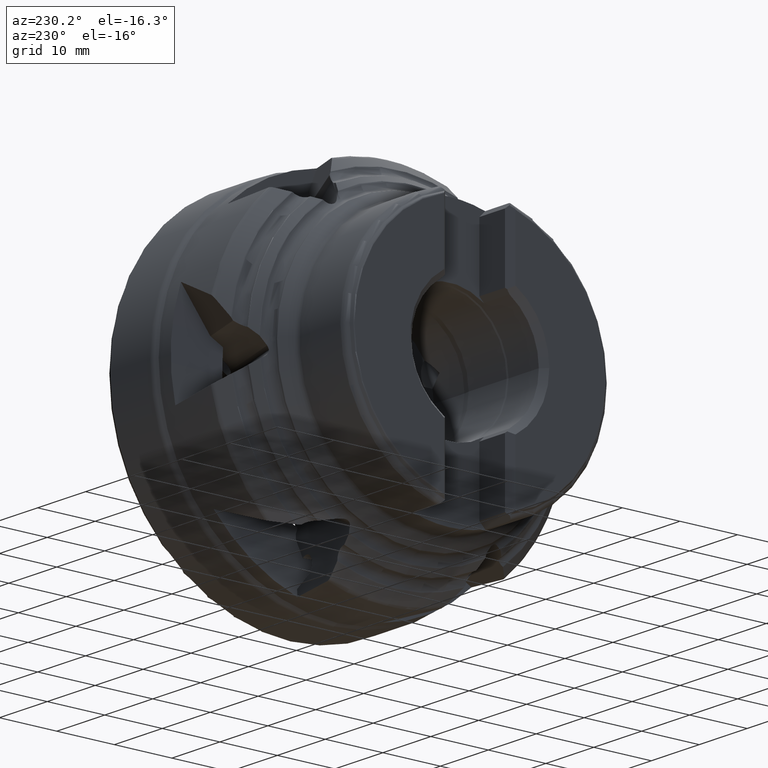
[diagram: clean part render]
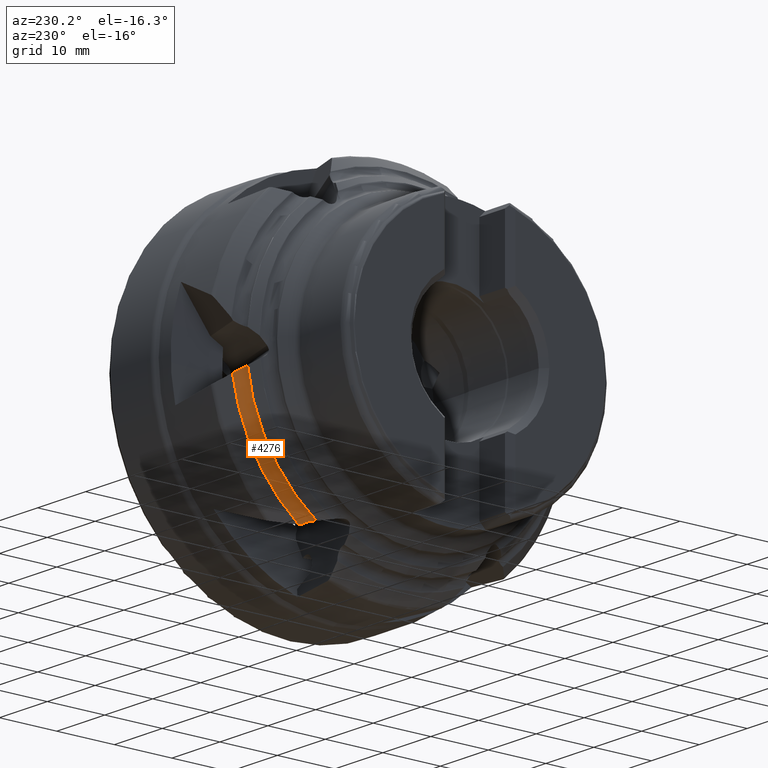
[diagram: same view with one face highlighted and labeled with its STEP entity id]
A machine part, auxiliary view. The second image highlights one B-rep face of the part: STEP entity #4276.
In plain terms, the highlighted toroidal blend (fillet) surface has major radius 29.0539 mm and minor (blend) radius 1.5 mm.
Its self-contained STEP definition (entity closure, byte-faithful):
#1833 = EDGE_LOOP ( 'NONE', ( #2826, #2835, #2807, #2806, #2836 ) ) ;
#2806 = ORIENTED_EDGE ( 'NONE', *, *, #7948, .F. ) ;
#2807 = ORIENTED_EDGE ( 'NONE', *, *, #7975, .F. ) ;
#2826 = ORIENTED_EDGE ( 'NONE', *, *, #7989, .F. ) ;
#2835 = ORIENTED_EDGE ( 'NONE', *, *, #7949, .T. ) ;
#2836 = ORIENTED_EDGE ( 'NONE', *, *, #7984, .F. ) ;
#3239 = VERTEX_POINT ( 'NONE', #11591 ) ;
#3378 = VERTEX_POINT ( 'NONE', #11730 ) ;
#3981 = VERTEX_POINT ( 'NONE', #5359 ) ;
#3987 = VERTEX_POINT ( 'NONE', #5363 ) ;
#4009 = VERTEX_POINT ( 'NONE', #5377 ) ;
#4276 = ADVANCED_FACE ( 'NONE', ( #6176 ), #6181, .F. ) ;
#5359 = CARTESIAN_POINT ( 'NONE',  ( -21.08210839350755400, 28.70235254961209400, -4.483227594041697900 ) ) ;
#5363 = CARTESIAN_POINT ( 'NONE',  ( -21.11050798975558300, 16.76531685484063100, -23.37208403636481100 ) ) ;
#5377 = CARTESIAN_POINT ( 'NONE',  ( -21.08210839350755400, 17.18136177224721100, -23.42488376050909700 ) ) ;
#6176 = FACE_OUTER_BOUND ( 'NONE', #1833, .T. ) ;
#6181 = TOROIDAL_SURFACE ( 'NONE', #7502, 29.05387160771681500, 1.500000000000000000 ) ;
#7225 = CIRCLE ( 'NONE', #9475, 29.05037644407040200 ) ;
#7227 = CIRCLE ( 'NONE', #9474, 27.55387160771681500 ) ;
#7502 = AXIS2_PLACEMENT_3D ( 'NONE', #8207, #8206, #8209 ) ;
#7948 = EDGE_CURVE ( 'NONE', #4009, #3981, #7225, .T. ) ;
#7949 = EDGE_CURVE ( 'NONE', #3378, #3239, #7227, .T. ) ;
#7975 = EDGE_CURVE ( 'NONE', #3981, #3239, #12252, .T. ) ;
#7984 = EDGE_CURVE ( 'NONE', #3987, #4009, #12255, .T. ) ;
#7989 = EDGE_CURVE ( 'NONE', #3378, #3987, #12257, .T. ) ;
#8206 = DIRECTION ( 'NONE',  ( 1.000000000000000000, -0.0000000000000000000, -0.0000000000000000000 ) ) ;
#8207 = CARTESIAN_POINT ( 'NONE',  ( -22.58210432144572300, 0.0000000000000000000, 0.0000000000000000000 ) ) ;
#8209 = DIRECTION ( 'NONE',  ( 0.0000000000000000000, 0.0000000000000000000, -1.000000000000000000 ) ) ;
#9474 = AXIS2_PLACEMENT_3D ( 'NONE', #10865, #10868, #10870 ) ;
#9475 = AXIS2_PLACEMENT_3D ( 'NONE', #10845, #10862, #10864 ) ;
#10845 = CARTESIAN_POINT ( 'NONE',  ( -21.08210839350755400, 0.0000000000000000000, 0.0000000000000000000 ) ) ;
#10862 = DIRECTION ( 'NONE',  ( 1.000000000000000000, -0.0000000000000000000, -0.0000000000000000000 ) ) ;
#10864 = DIRECTION ( 'NONE',  ( 0.0000000000000000000, 0.0000000000000000000, -1.000000000000000000 ) ) ;
#10865 = CARTESIAN_POINT ( 'NONE',  ( -22.58210432144572300, 0.0000000000000000000, 0.0000000000000000000 ) ) ;
#10868 = DIRECTION ( 'NONE',  ( 1.000000000000000000, -0.0000000000000000000, -0.0000000000000000000 ) ) ;
#10870 = DIRECTION ( 'NONE',  ( 0.0000000000000000000, 0.0000000000000000000, -1.000000000000000000 ) ) ;
#11055 = CARTESIAN_POINT ( 'NONE',  ( -21.08210839350755400, 28.70235254961209400, -4.483227594041697900 ) ) ;
#11073 = CARTESIAN_POINT ( 'NONE',  ( -21.08233424574742500, 28.61237016852967900, -4.431239590217819200 ) ) ;
#11074 = CARTESIAN_POINT ( 'NONE',  ( -21.09214752049611600, 28.52173626541291900, -4.377319558335768700 ) ) ;
#11076 = CARTESIAN_POINT ( 'NONE',  ( -21.12969293695271100, 28.34705438801377000, -4.270373962441113700 ) ) ;
#11078 = CARTESIAN_POINT ( 'NONE',  ( -21.15727029760392600, 28.26241734838813400, -4.217033419662843800 ) ) ;
#11079 = CARTESIAN_POINT ( 'NONE',  ( -21.22989367154933400, 28.09850787314792300, -4.110614731699926400 ) ) ;
#11081 = CARTESIAN_POINT ( 'NONE',  ( -21.27525952394033500, 28.01913114051019000, -4.057424466287861800 ) ) ;
#11083 = CARTESIAN_POINT ( 'NONE',  ( -21.38031874709044900, 27.87192825107284800, -3.955387556923283900 ) ) ;
#11085 = CARTESIAN_POINT ( 'NONE',  ( -21.44030299613535100, 27.80326291470277100, -3.906009207941905500 ) ) ;
#11086 = CARTESIAN_POINT ( 'NONE',  ( -21.57579130229487800, 27.67620872482195800, -3.810667045668526300 ) ) ;
#11088 = CARTESIAN_POINT ( 'NONE',  ( -21.65124665915460500, 27.61819260803228100, -3.764926335225659700 ) ) ;
#11090 = CARTESIAN_POINT ( 'NONE',  ( -21.81197583283300600, 27.51789539241243400, -3.680936166205374300 ) ) ;
#11092 = CARTESIAN_POINT ( 'NONE',  ( -21.89793214717805700, 27.47489762516843800, -3.642162181468605800 ) ) ;
#11094 = CARTESIAN_POINT ( 'NONE',  ( -22.17399755936632400, 27.36917442192404300, -3.536322254968700600 ) ) ;
#11096 = CARTESIAN_POINT ( 'NONE',  ( -22.37381418663366600, 27.33287390928292400, -3.482937386924300300 ) ) ;
#11098 = CARTESIAN_POINT ( 'NONE',  ( -22.58210432144572300, 27.33685163398677900, -3.451432067408725800 ) ) ;
#11157 = CARTESIAN_POINT ( 'NONE',  ( -21.11050798975558300, 16.76531685484063100, -23.37208403636481100 ) ) ;
#11165 = CARTESIAN_POINT ( 'NONE',  ( -21.09235665258083300, 16.90368719507559100, -23.38597859192857000 ) ) ;
#11167 = CARTESIAN_POINT ( 'NONE',  ( -21.08234043898235300, 17.04234913137959900, -23.40334397959900400 ) ) ;
#11169 = CARTESIAN_POINT ( 'NONE',  ( -21.08210839350755400, 17.18136177224721100, -23.42488376050909700 ) ) ;
#11188 = CARTESIAN_POINT ( 'NONE',  ( -22.58210432144556300, 15.35188888888569500, -22.88089482773458300 ) ) ;
#11205 = CARTESIAN_POINT ( 'NONE',  ( -22.22922288504490500, 15.45409995348019700, -22.81231652611289500 ) ) ;
#11207 = CARTESIAN_POINT ( 'NONE',  ( -21.89590148944478500, 15.66500545822676700, -22.81904097977990600 ) ) ;
#11209 = CARTESIAN_POINT ( 'NONE',  ( -21.50377139017063800, 16.04604903677087800, -22.94337610280864200 ) ) ;
#11211 = CARTESIAN_POINT ( 'NONE',  ( -21.39043425138453000, 16.18435538973512100, -23.00380012169008000 ) ) ;
#11213 = CARTESIAN_POINT ( 'NONE',  ( -21.21046717395697500, 16.47241082333385300, -23.16256381463317400 ) ) ;
#11215 = CARTESIAN_POINT ( 'NONE',  ( -21.14560938156541400, 16.61846804543157700, -23.25860907169489900 ) ) ;
#11217 = CARTESIAN_POINT ( 'NONE',  ( -21.11050798975558300, 16.76531685484063100, -23.37208403636481100 ) ) ;
#11591 = CARTESIAN_POINT ( 'NONE',  ( -22.58210432144572300, 27.33685163398677900, -3.451432067408725800 ) ) ;
#11730 = CARTESIAN_POINT ( 'NONE',  ( -22.58210432144556300, 15.35188888888569500, -22.88089482773458300 ) ) ;
#12252 = B_SPLINE_CURVE_WITH_KNOTS ( 'NONE', 3,
 ( #11055, #11073, #11074, #11076, #11078, #11079, #11081, #11083, #11085, #11086, #11088, #11090, #11092, #11094, #11096, #11098 ),
 .UNSPECIFIED., .F., .F.,
 ( 4, 2, 2, 2, 2, 2, 2, 4 ),
 ( 0.0004005664667394925300, 0.0007115889290471689300, 0.001022611391354845300, 0.001333633853662521600, 0.001644656315970198100, 0.001955678778277874200, 0.002266701240585550900, 0.002888746165200912200 ),
 .UNSPECIFIED. ) ;
#12255 = B_SPLINE_CURVE_WITH_KNOTS ( 'NONE', 3,
 ( #11157, #11165, #11167, #11169 ),
 .UNSPECIFIED., .F., .F.,
 ( 4, 4 ),
 ( 0.003195653265047544800, 0.003616286529750059600 ),
 .UNSPECIFIED. ) ;
#12257 = B_SPLINE_CURVE_WITH_KNOTS ( 'NONE', 3,
 ( #11188, #11205, #11207, #11209, #11211, #11213, #11215, #11217 ),
 .UNSPECIFIED., .F., .F.,
 ( 4, 2, 2, 4 ),
 ( 0.0001364347269612789100, 0.001253305422287576300, 0.001811740769950723700, 0.002370176117613871200 ),
 .UNSPECIFIED. ) ;